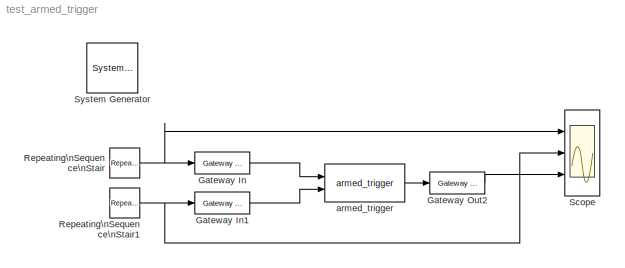
MODEL test_armed_trigger
KIND model
BLOCK [Reference]  System Generator  REF=xbsIndex_r3/ System Generator
  AttributesFormatString = System\\nGenerator
  Ports = []
  ShowPortLabels = on
  SourceBlock = xbsIndex_r3/ System Generator
  SourceType = Xilinx System Generator
  Tag = genX
  UserData = DataTag0
  UserDataPersistent = on
  core_generation = According to Block Masks
  dbl_ovrd = According to Block Masks
  deprecated_control = off
  directory = ./ibob_ata_ddc/sysgen
  eval_field = 0
  incr_netlist = off
  package = ff1152
  part = xc2vp50
  run_coregen = off
  simulink_period = 1
  speed = -7
  synthesis_tool = XST
  sysclk_period = 4.7684
  testbench = off
  trim_vbits = Everywhere in SubSystem
  xilinxfamily = Virtex2P
BLOCK [Reference] Gateway In  REF=xbsIndex_r3/Gateway In
  LOCs = {}
  Ports = [1, 1]
  SourceBlock = xbsIndex_r3/Gateway In
  SourceType = Xilinx Gateway In
  arith_type = Boolean
  bin_pt = 6
  dbl_ovrd = off
  locs_specified = off
  n_bits = 8
  needs_fixed_name = off
  overflow = Wrap
  period = 1
  quantization = Truncate
  show_param = off
  timing_constraint = None
  xl_area = [0, 0, 0, 0, 0, 0, 0]
  xl_use_area = off
BLOCK [Reference] Gateway In1  REF=xbsIndex_r3/Gateway In
  LOCs = {}
  Ports = [1, 1]
  SourceBlock = xbsIndex_r3/Gateway In
  SourceType = Xilinx Gateway In
  arith_type = Boolean
  bin_pt = 6
  dbl_ovrd = off
  locs_specified = off
  n_bits = 8
  needs_fixed_name = off
  overflow = Wrap
  period = 1
  quantization = Truncate
  show_param = off
  timing_constraint = None
  xl_area = [0, 0, 0, 0, 0, 0, 0]
  xl_use_area = off
BLOCK [Reference] Gateway Out2  REF=xbsIndex_r3/Gateway Out
  LOCs = {}
  Ports = [1, 1]
  SourceBlock = xbsIndex_r3/Gateway Out
  SourceType = Xilinx Gateway Out
  arith_type = Boolean
  bin_pt = 6
  hdl_port = on
  locs_specified = off
  nbits = 8
  needs_fixed_name = off
  output_type = Double
  overflow = Wrap
  quantization = Truncate
  show_param = off
  timing_constraint = None
  xl_area = [0, 0, 0, 0, 0, 0, 0]
  xl_use_area = off
BLOCK [Reference] Repeating\nSequence\nStair  REF=simulink/Sources/Repeating\nSequence\nStair
  ConRadixGroup = Best Precision: Vector-wise
  LockScale = off
  OutDataType = float('double')
  OutScaling = 2^-12
  OutValues = [zeros(1,14) ones(1,40) zeros(1,2)]
  OutputDataTypeScalingMode = Specify via dialog
  Ports = [0, 1]
  ShowPortLabels = on
  SourceBlock = simulink/Sources/Repeating\nSequence\nStair
  SourceType = Repeating Sequence Stair
  tsamp = -1
BLOCK [Reference] Repeating\nSequence\nStair1  REF=simulink/Sources/Repeating\nSequence\nStair
  ConRadixGroup = Best Precision: Vector-wise
  LockScale = off
  OutDataType = float('double')
  OutScaling = 2^-12
  OutValues = [zeros(1,4) 1 zeros(1,5)]
  OutputDataTypeScalingMode = Specify via dialog
  Ports = [0, 1]
  ShowPortLabels = on
  SourceBlock = simulink/Sources/Repeating\nSequence\nStair
  SourceType = Repeating Sequence Stair
  tsamp = -1
BLOCK [Scope] Scope
  DataFormat = StructureWithTime
  NumInputPorts = 3
  Ports = [3]
  YMax = 5~5~5
  YMin = -5~-5~-5
BLOCK [Reference] armed_trigger  REF=newfft_library/Utility/armed_trigger  (lib defined in mdl_7043880fa2b0)
  Ports = [2, 1]
  ShowPortLabels = on
  SourceBlock = newfft_library/Utility/armed_trigger
  SourceType = Armed Trigger
  hidden = 0
LINE Gateway In1:1 -> armed_trigger:2
LINE Gateway In:1 -> armed_trigger:1
LINE Gateway Out2:1 -> Scope:3
NET Repeating\nSequence\nStair1:1 -> Gateway In1:1, Scope:2
NET Repeating\nSequence\nStair:1 -> Gateway In:1, Scope:1
LINE armed_trigger:1 -> Gateway Out2:1
note: NET lines group one-source signal fan-out (src -> all destinations, sorted); 1:1 wires keep LINE
